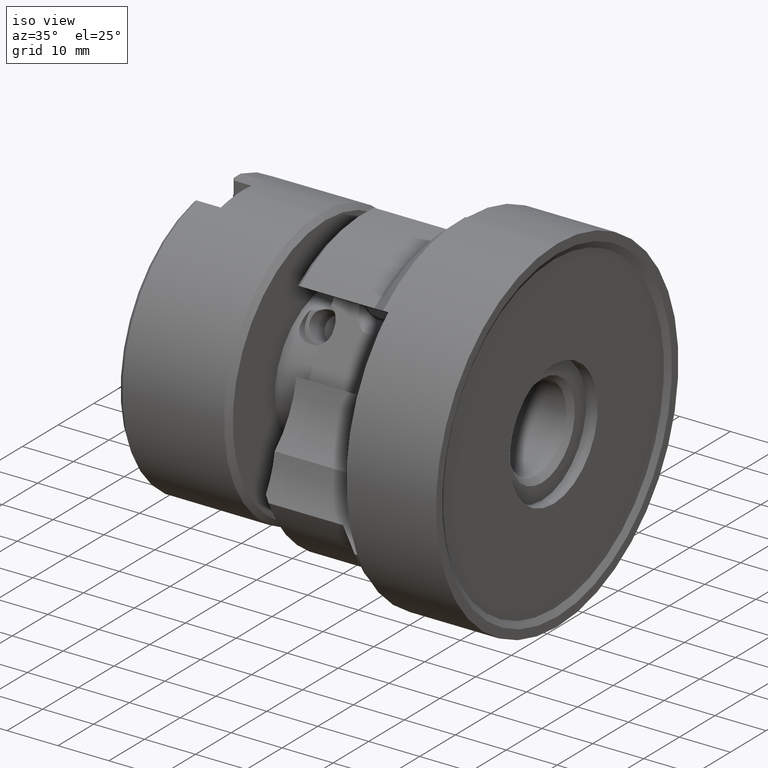
[diagram: clean part render]
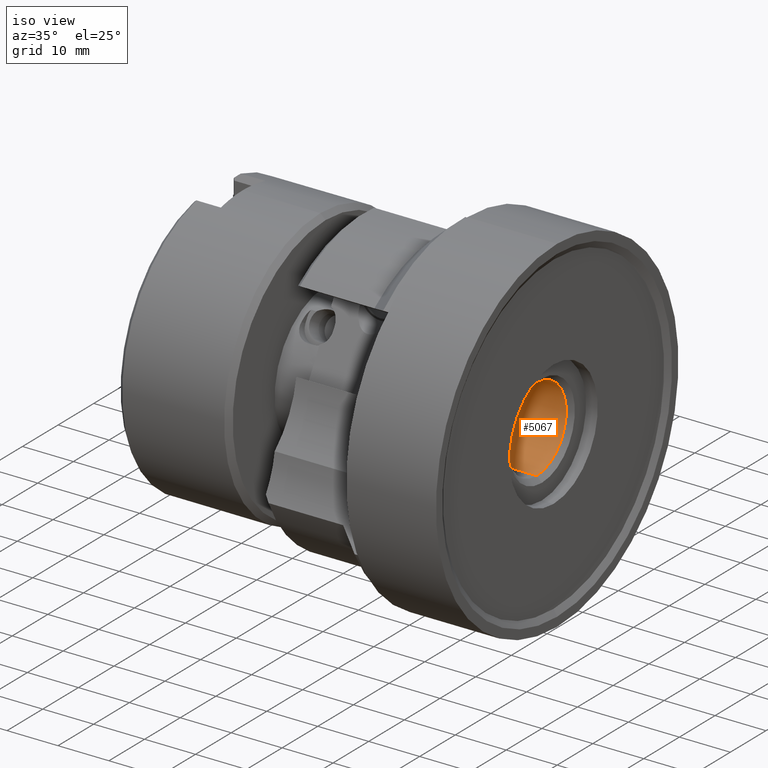
[diagram: same view with one face highlighted and labeled with its STEP entity id]
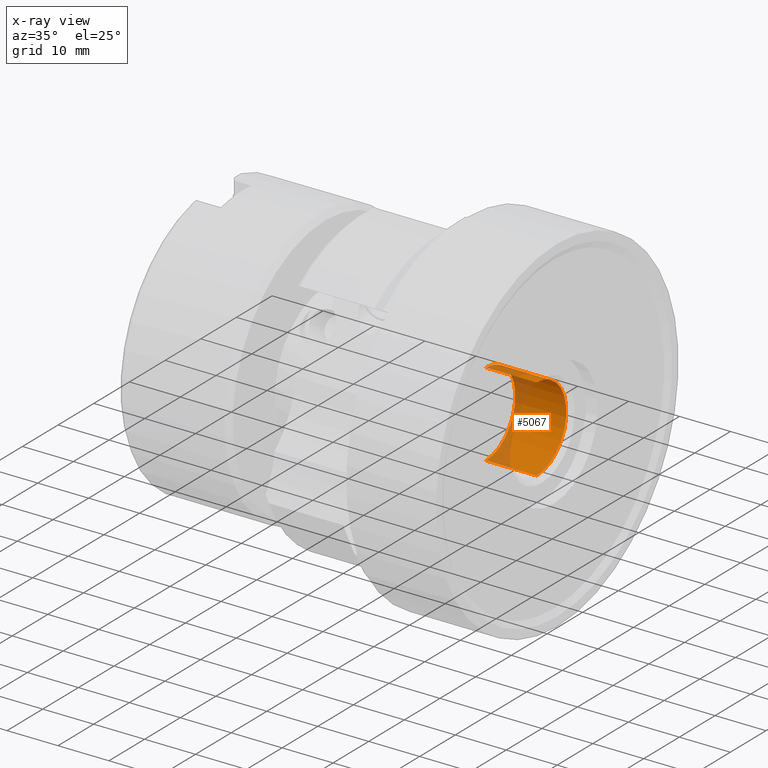
[diagram: x-ray of the same camera — body ghosted, the highlighted face saturated]
A machine part, iso view. The second image highlights one B-rep face of the part: STEP entity #5067.
The next image is the same camera in x-ray: the body ghosted, the highlighted face saturated — about 23% of this face is hidden behind the body in this view.
In plain terms, the highlighted cylindrical surface (partial cylindrical patch) has radius 8.25 mm, axis along (-1, -0, -0).
Its self-contained STEP definition (entity closure, byte-faithful):
#35 = VERTEX_POINT ( 'NONE', #880 ) ;
#73 = EDGE_LOOP ( 'NONE', ( #655, #656, #657, #658 ) ) ;
#655 = ORIENTED_EDGE ( 'NONE', *, *, #4943, .F. ) ;
#656 = ORIENTED_EDGE ( 'NONE', *, *, #4738, .T. ) ;
#657 = ORIENTED_EDGE ( 'NONE', *, *, #4945, .T. ) ;
#658 = ORIENTED_EDGE ( 'NONE', *, *, #4737, .T. ) ;
#880 = CARTESIAN_POINT ( 'NONE',  ( -2.000000000000001800, 1.010333609296566500E-015, -8.250000000000000000 ) ) ;
#1359 = CIRCLE ( 'NONE', #1486, 8.250000000000000000 ) ;
#1360 = CIRCLE ( 'NONE', #2472, 8.250000000000000000 ) ;
#1486 = AXIS2_PLACEMENT_3D ( 'NONE', #2272, #2273, #2274 ) ;
#2070 = CARTESIAN_POINT ( 'NONE',  ( -2.000000000000001800, 0.0000000000000000000, 8.250000000000000000 ) ) ;
#2124 = CARTESIAN_POINT ( 'NONE',  ( -11.99999999999999600, 1.010333609296566500E-015, -8.250000000000000000 ) ) ;
#2154 = CARTESIAN_POINT ( 'NONE',  ( -11.99999999999999600, 0.0000000000000000000, 8.250000000000000000 ) ) ;
#2272 = CARTESIAN_POINT ( 'NONE',  ( -11.99999999999999600, 0.0000000000000000000, 0.0000000000000000000 ) ) ;
#2273 = DIRECTION ( 'NONE',  ( -1.000000000000000000, -0.0000000000000000000, -0.0000000000000000000 ) ) ;
#2274 = DIRECTION ( 'NONE',  ( 0.0000000000000000000, 0.0000000000000000000, 1.000000000000000000 ) ) ;
#2275 = CARTESIAN_POINT ( 'NONE',  ( -2.000000000000001800, 0.0000000000000000000, 0.0000000000000000000 ) ) ;
#2276 = DIRECTION ( 'NONE',  ( 1.000000000000000000, -0.0000000000000000000, -0.0000000000000000000 ) ) ;
#2277 = DIRECTION ( 'NONE',  ( 0.0000000000000000000, 0.0000000000000000000, -1.000000000000000000 ) ) ;
#2472 = AXIS2_PLACEMENT_3D ( 'NONE', #2275, #2276, #2277 ) ;
#2654 = AXIS2_PLACEMENT_3D ( 'NONE', #3963, #3958, #3960 ) ;
#2936 = LINE ( 'NONE', #3286, #2939 ) ;
#2939 = VECTOR ( 'NONE', #3287, 1000.000000000000000 ) ;
#2940 = LINE ( 'NONE', #3281, #2942 ) ;
#2942 = VECTOR ( 'NONE', #3282, 1000.000000000000000 ) ;
#3281 = CARTESIAN_POINT ( 'NONE',  ( -75.55614035087720000, 0.0000000000000000000, 8.250000000000000000 ) ) ;
#3282 = DIRECTION ( 'NONE',  ( -1.000000000000000000, -0.0000000000000000000, -0.0000000000000000000 ) ) ;
#3286 = CARTESIAN_POINT ( 'NONE',  ( -75.55614035087720000, 1.010333609296566500E-015, -8.250000000000000000 ) ) ;
#3287 = DIRECTION ( 'NONE',  ( -1.000000000000000000, -0.0000000000000000000, -0.0000000000000000000 ) ) ;
#3562 = FACE_OUTER_BOUND ( 'NONE', #73, .T. ) ;
#3571 = CYLINDRICAL_SURFACE ( 'NONE', #2654, 8.250000000000000000 ) ;
#3958 = DIRECTION ( 'NONE',  ( -1.000000000000000000, -0.0000000000000000000, -0.0000000000000000000 ) ) ;
#3960 = DIRECTION ( 'NONE',  ( 0.0000000000000000000, 0.0000000000000000000, 1.000000000000000000 ) ) ;
#3963 = CARTESIAN_POINT ( 'NONE',  ( -75.55614035087720000, 0.0000000000000000000, 0.0000000000000000000 ) ) ;
#4420 = VERTEX_POINT ( 'NONE', #2070 ) ;
#4533 = VERTEX_POINT ( 'NONE', #2124 ) ;
#4614 = VERTEX_POINT ( 'NONE', #2154 ) ;
#4737 = EDGE_CURVE ( 'NONE', #4614, #4533, #1359, .T. ) ;
#4738 = EDGE_CURVE ( 'NONE', #35, #4420, #1360, .T. ) ;
#4943 = EDGE_CURVE ( 'NONE', #35, #4533, #2936, .T. ) ;
#4945 = EDGE_CURVE ( 'NONE', #4420, #4614, #2940, .T. ) ;
#5067 = ADVANCED_FACE ( 'NONE', ( #3562 ), #3571, .F. ) ;